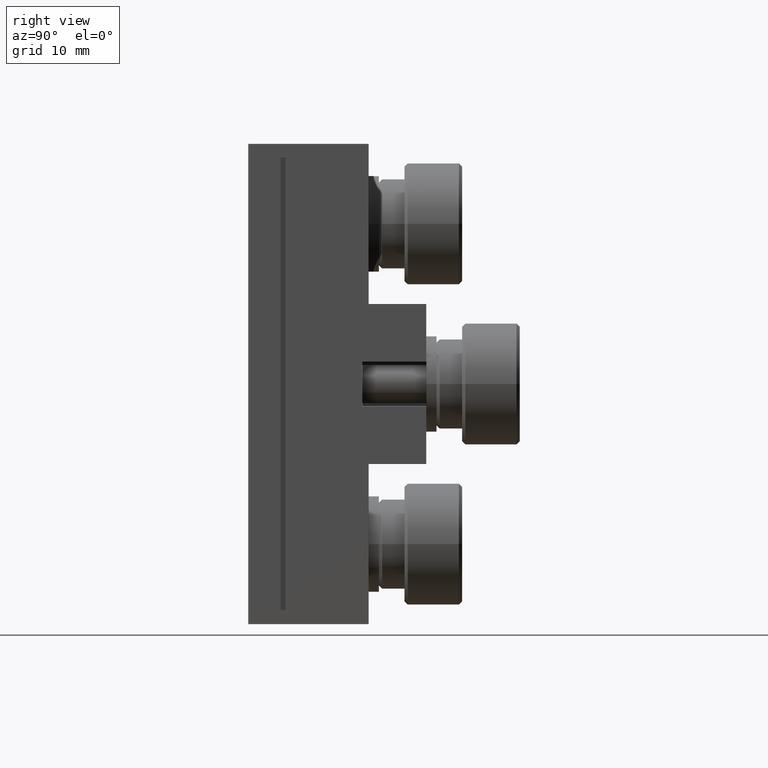
[diagram: clean part render]
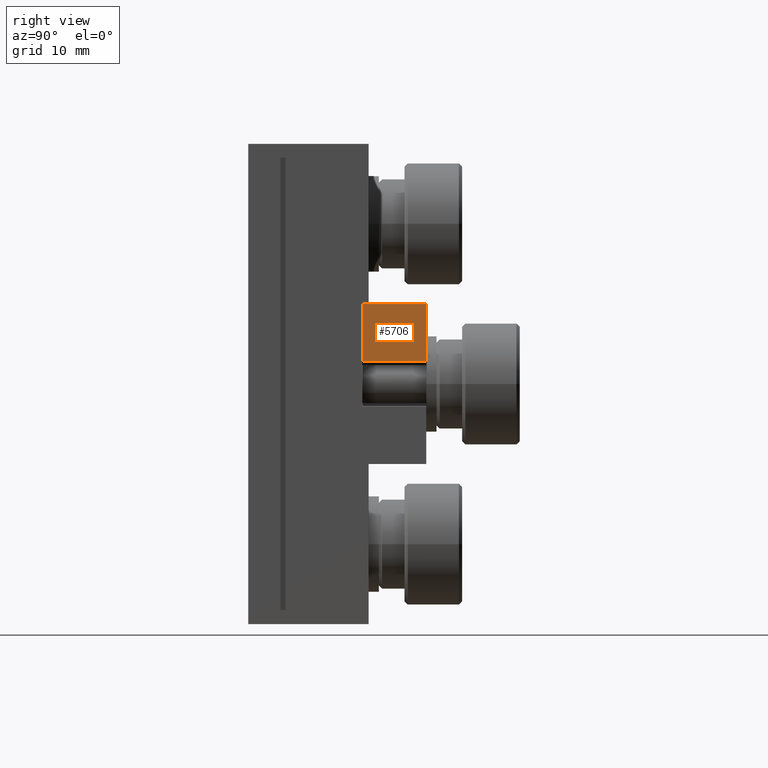
[diagram: same view with one face highlighted and labeled with its STEP entity id]
A machine part, right view. The second image highlights one B-rep face of the part: STEP entity #5706.
In plain terms, the highlighted planar face has unit normal (1, -0, 0).
Its self-contained STEP definition (entity closure, byte-faithful):
#42 = CARTESIAN_POINT ( 'NONE',  ( 37.38646684831970600, 14.62107175295186000, 12.50000000000000500 ) ) ;
#172 = EDGE_CURVE ( 'NONE', #3758, #5306, #2288, .T. ) ;
#188 = AXIS2_PLACEMENT_3D ( 'NONE', #4570, #5040, #3057 ) ;
#325 = DIRECTION ( 'NONE',  ( 0.0000000000000000000, 0.0000000000000000000, -1.000000000000000000 ) ) ;
#658 = DIRECTION ( 'NONE',  ( 0.0000000000000000000, 0.0000000000000000000, -1.000000000000000000 ) ) ;
#782 = LINE ( 'NONE', #4283, #5505 ) ;
#796 = DIRECTION ( 'NONE',  ( 0.0000000000000000000, 1.000000000000000000, 0.0000000000000000000 ) ) ;
#1421 = LINE ( 'NONE', #3605, #5981 ) ;
#1552 = CARTESIAN_POINT ( 'NONE',  ( 37.38646684831970600, 4.621071752951859700, 12.50000000000000500 ) ) ;
#1620 = EDGE_CURVE ( 'NONE', #2704, #3758, #1421, .T. ) ;
#1793 = VECTOR ( 'NONE', #796, 1000.000000000000000 ) ;
#1830 = VECTOR ( 'NONE', #2059, 1000.000000000000000 ) ;
#2059 = DIRECTION ( 'NONE',  ( 0.0000000000000000000, 1.000000000000000000, 0.0000000000000000000 ) ) ;
#2288 = LINE ( 'NONE', #2874, #1793 ) ;
#2704 = VERTEX_POINT ( 'NONE', #3202 ) ;
#2874 = CARTESIAN_POINT ( 'NONE',  ( 37.38646684831970600, 4.621071752951859700, 3.500000000000004900 ) ) ;
#2878 = EDGE_CURVE ( 'NONE', #2704, #4173, #4202, .T. ) ;
#3057 = DIRECTION ( 'NONE',  ( 0.0000000000000000000, 0.0000000000000000000, -1.000000000000000000 ) ) ;
#3202 = CARTESIAN_POINT ( 'NONE',  ( 37.38646684831970600, 4.621071752951859700, 12.50000000000000500 ) ) ;
#3322 = ORIENTED_EDGE ( 'NONE', *, *, #6323, .F. ) ;
#3605 = CARTESIAN_POINT ( 'NONE',  ( 37.38646684831970600, 4.621071752951859700, 1.077209001710304100E-014 ) ) ;
#3758 = VERTEX_POINT ( 'NONE', #4147 ) ;
#3769 = ORIENTED_EDGE ( 'NONE', *, *, #2878, .F. ) ;
#3956 = FACE_OUTER_BOUND ( 'NONE', #4146, .T. ) ;
#4146 = EDGE_LOOP ( 'NONE', ( #3322, #3769, #6614, #5683 ) ) ;
#4147 = CARTESIAN_POINT ( 'NONE',  ( 37.38646684831970600, 4.621071752951859700, 3.500000000000004900 ) ) ;
#4173 = VERTEX_POINT ( 'NONE', #42 ) ;
#4202 = LINE ( 'NONE', #1552, #1830 ) ;
#4283 = CARTESIAN_POINT ( 'NONE',  ( 37.38646684831970600, 14.62107175295186000, 1.077209001710304100E-014 ) ) ;
#4570 = CARTESIAN_POINT ( 'NONE',  ( 37.38646684831970600, 4.621071752951859700, 1.077209001710304100E-014 ) ) ;
#4956 = CARTESIAN_POINT ( 'NONE',  ( 37.38646684831970600, 14.62107175295186000, 3.500000000000004900 ) ) ;
#5040 = DIRECTION ( 'NONE',  ( 1.000000000000000000, -0.0000000000000000000, 0.0000000000000000000 ) ) ;
#5072 = PLANE ( 'NONE',  #188 ) ;
#5306 = VERTEX_POINT ( 'NONE', #4956 ) ;
#5505 = VECTOR ( 'NONE', #658, 1000.000000000000000 ) ;
#5683 = ORIENTED_EDGE ( 'NONE', *, *, #172, .T. ) ;
#5706 = ADVANCED_FACE ( 'NONE', ( #3956 ), #5072, .T. ) ;
#5981 = VECTOR ( 'NONE', #325, 1000.000000000000000 ) ;
#6323 = EDGE_CURVE ( 'NONE', #4173, #5306, #782, .T. ) ;
#6614 = ORIENTED_EDGE ( 'NONE', *, *, #1620, .T. ) ;